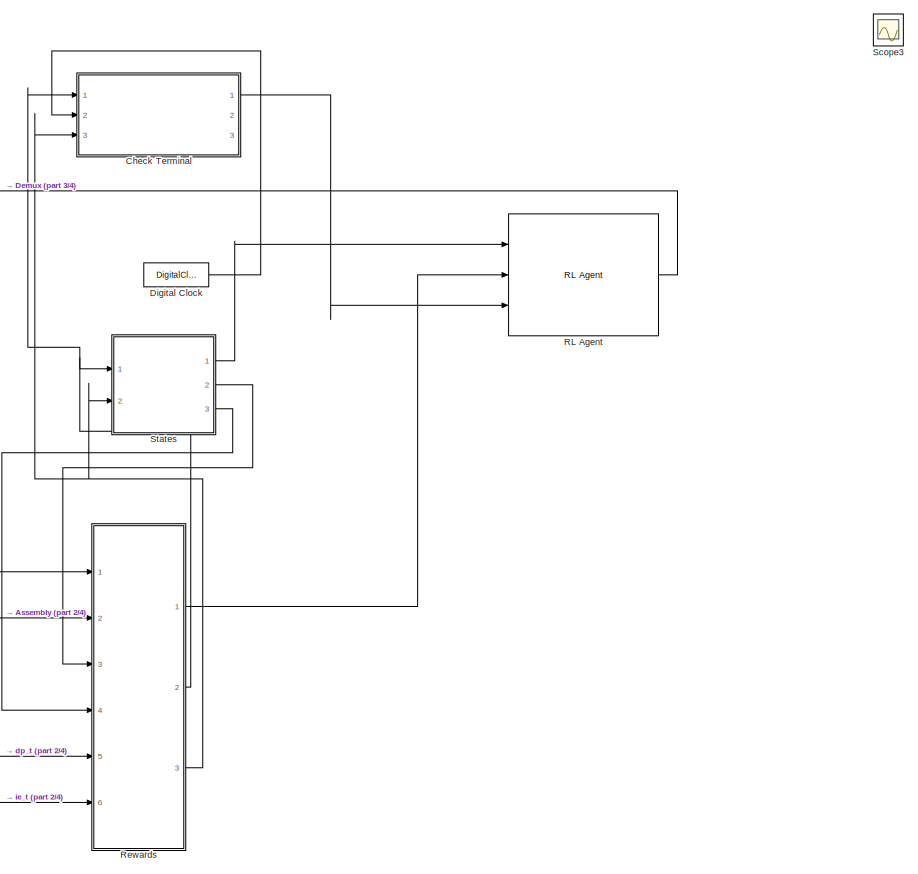
[diagram: root canvas - part 1/4, right side, full height]
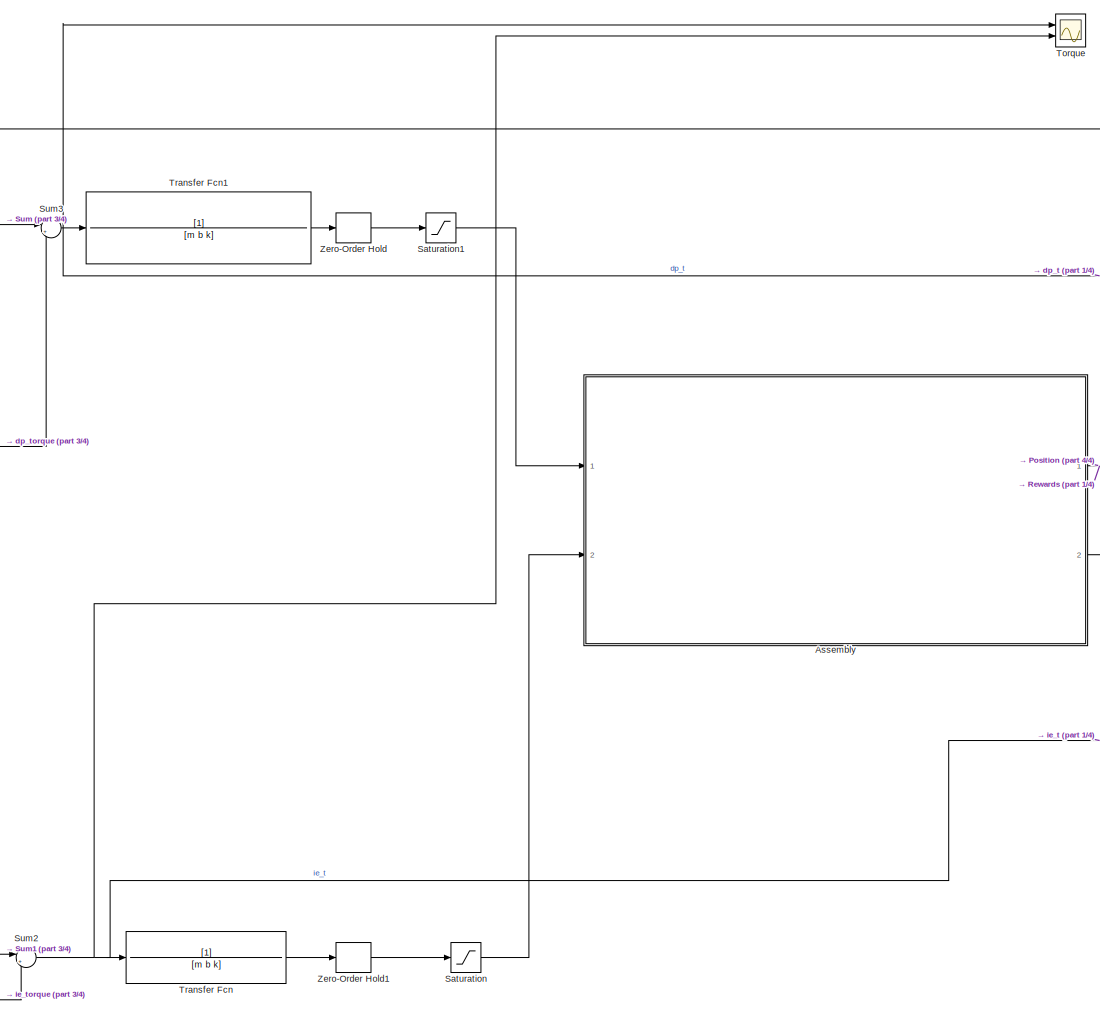
[diagram: root canvas - part 2/4, center side, full height]
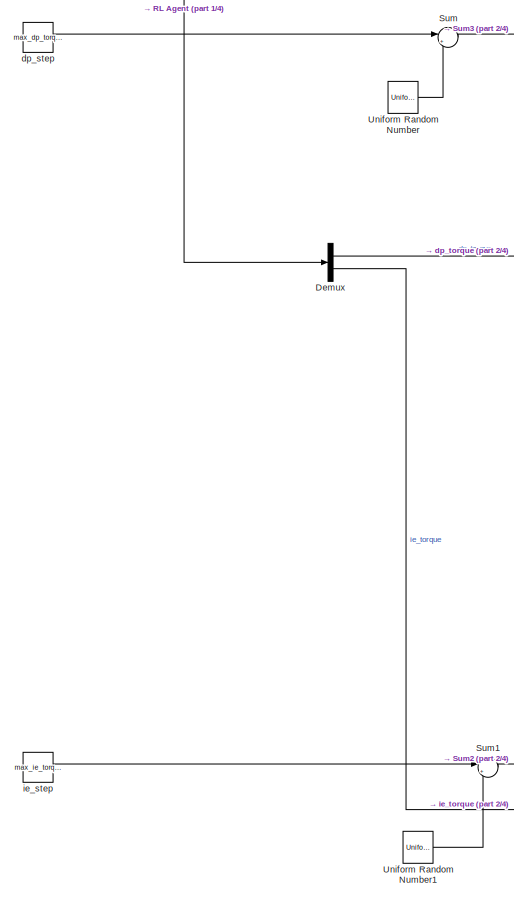
[diagram: root canvas - part 3/4, left side, full height]
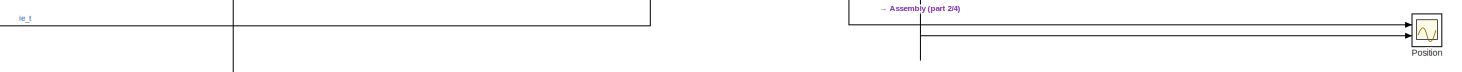
[diagram: root canvas - part 4/4, bottom center region]
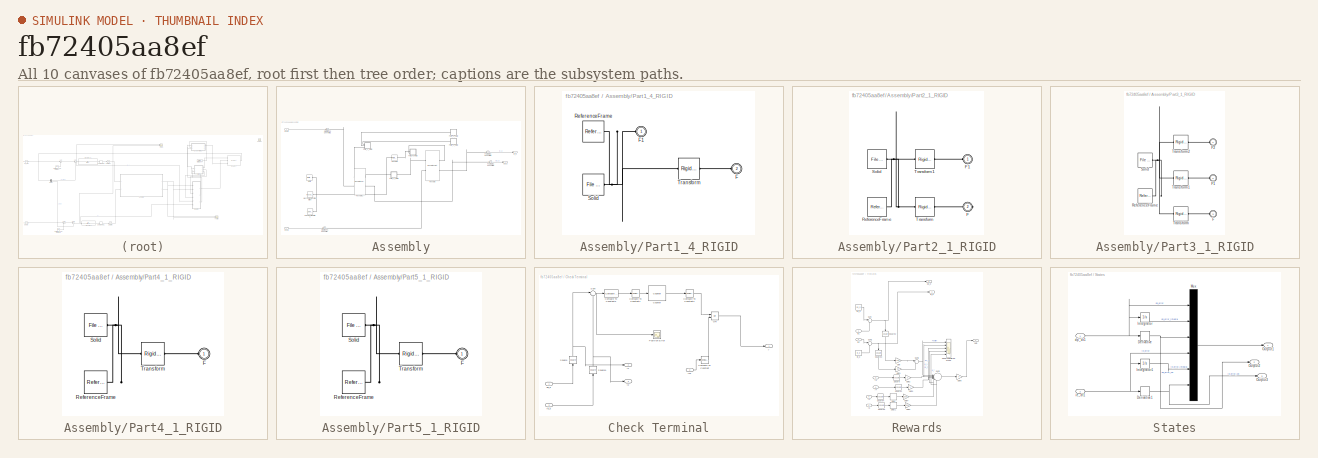
[diagram: thumbnail index - all 10 canvases of the model, root first then tree order]
MODEL slx_fb72405aa8ef
KIND model
CONFIG AbsTol = auto
CONFIG EnableMultiTasking = off
CONFIG FixedStep = T
CONFIG MaxStep = auto
CONFIG MinStep = auto
CONFIG RelTol = 1e-3
CONFIG SampleTimeConstraint = Unconstrained
CONFIG SolverName = FixedStepAuto
CONFIG StartTime = 0.0
CONFIG StopTime = 30
WORKSPACE source: external: MATLAB File  (data not in archive)
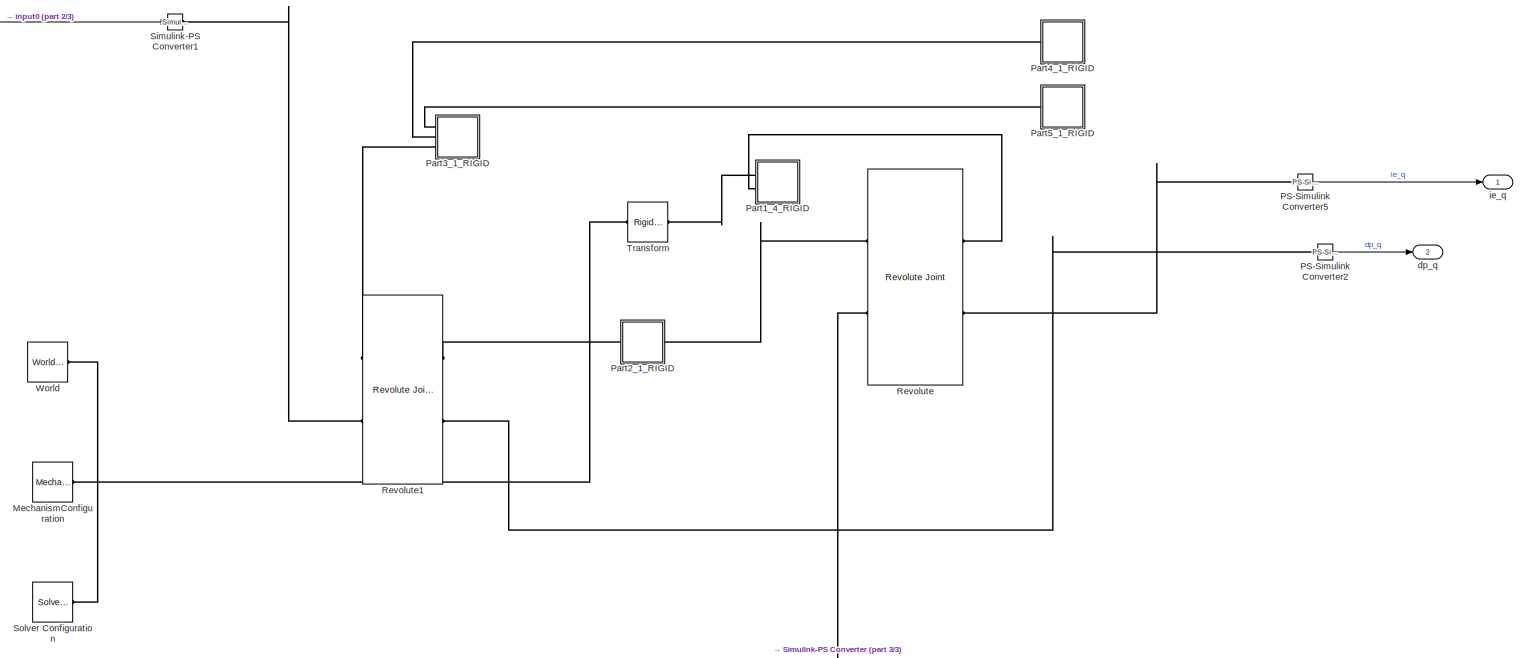
[diagram: Assembly - part 1/3, most of the canvas]
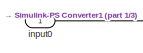
[diagram: Assembly - part 2/3, top left region]
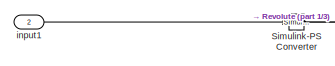
[diagram: Assembly - part 3/3, bottom left region]
BLOCK [SubSystem] Assembly
  Ports = [2, 2]
  RequestExecContextInheritance = off
BLOCK [Reference] Assembly/MechanismConfiguration  REF=sm_lib/Utilities/Mechanism
Configuration
  Ports = [0, 0, 0, 0, 0, 0, 1]
  SourceBlock = sm_lib/Utilities/Mechanism\nConfiguration
  SourceProductBaseCode = MS
  SourceType = Mechanism\nConfiguration
BLOCK [Reference] Assembly/PS-Simulink Converter2  REF=nesl_utility/PS-Simulink
Converter
  Ports = [0, 1, 0, 0, 0, 1]
  SourceBlock = nesl_utility/PS-Simulink\nConverter
  SourceProductBaseCode = PW,SS
  SourceType = PS-Simulink\nConverter
BLOCK [Reference] Assembly/PS-Simulink Converter5  REF=nesl_utility/PS-Simulink
Converter
  Ports = [0, 1, 0, 0, 0, 1]
  SourceBlock = nesl_utility/PS-Simulink\nConverter
  SourceProductBaseCode = PW,SS
  SourceType = PS-Simulink\nConverter
BLOCK [SubSystem] Assembly/Part1_4_RIGID
  Ports = [0, 0, 0, 0, 0, 2]
  RequestExecContextInheritance = off
BLOCK [PMIOPort] Assembly/Part1_4_RIGID/F
  Port = 2
  Side = Left
BLOCK [PMIOPort] Assembly/Part1_4_RIGID/F1
  Side = Left
BLOCK [Reference] Assembly/Part1_4_RIGID/ReferenceFrame  REF=sm_lib/Frames and
Transforms/Reference
Frame
  Ports = [0, 0, 0, 0, 0, 0, 1]
  SourceBlock = sm_lib/Frames and\nTransforms/Reference\nFrame
  SourceProductBaseCode = MS
  SourceType = Reference\nFrame
BLOCK [Reference] Assembly/Part1_4_RIGID/Solid  REF=sm_lib/Body Elements/File Solid
  Ports = [0, 0, 0, 0, 0, 0, 1]
  SourceBlock = sm_lib/Body Elements/File Solid
  SourceProductBaseCode = MS
  SourceType = File Solid
BLOCK [Reference] Assembly/Part1_4_RIGID/Transform  REF=sm_lib/Frames and
Transforms/Rigid
Transform
  Ports = [0, 0, 0, 0, 0, 1, 1]
  SourceBlock = sm_lib/Frames and\nTransforms/Rigid\nTransform
  SourceProductBaseCode = MS
  SourceType = Rigid\nTransform
BLOCK [SubSystem] Assembly/Part2_1_RIGID
  Ports = [0, 0, 0, 0, 0, 1, 1]
  RequestExecContextInheritance = off
BLOCK [PMIOPort] Assembly/Part2_1_RIGID/F
  Port = 2
  Side = Right
BLOCK [PMIOPort] Assembly/Part2_1_RIGID/F1
  Side = Left
BLOCK [Reference] Assembly/Part2_1_RIGID/ReferenceFrame  REF=sm_lib/Frames and
Transforms/Reference
Frame
  Ports = [0, 0, 0, 0, 0, 0, 1]
  SourceBlock = sm_lib/Frames and\nTransforms/Reference\nFrame
  SourceProductBaseCode = MS
  SourceType = Reference\nFrame
BLOCK [Reference] Assembly/Part2_1_RIGID/Solid  REF=sm_lib/Body Elements/File Solid
  Ports = [0, 0, 0, 0, 0, 0, 1]
  SourceBlock = sm_lib/Body Elements/File Solid
  SourceProductBaseCode = MS
  SourceType = File Solid
BLOCK [Reference] Assembly/Part2_1_RIGID/Transform  REF=sm_lib/Frames and
Transforms/Rigid
Transform
  Ports = [0, 0, 0, 0, 0, 1, 1]
  SourceBlock = sm_lib/Frames and\nTransforms/Rigid\nTransform
  SourceProductBaseCode = MS
  SourceType = Rigid\nTransform
BLOCK [Reference] Assembly/Part2_1_RIGID/Transform1  REF=sm_lib/Frames and
Transforms/Rigid
Transform
  Ports = [0, 0, 0, 0, 0, 1, 1]
  SourceBlock = sm_lib/Frames and\nTransforms/Rigid\nTransform
  SourceProductBaseCode = MS
  SourceType = Rigid\nTransform
BLOCK [SubSystem] Assembly/Part3_1_RIGID
  Ports = [0, 0, 0, 0, 0, 3]
  RequestExecContextInheritance = off
BLOCK [PMIOPort] Assembly/Part3_1_RIGID/F
  Port = 3
  Side = Left
BLOCK [PMIOPort] Assembly/Part3_1_RIGID/F1
  Port = 2
  Side = Left
BLOCK [PMIOPort] Assembly/Part3_1_RIGID/F2
  Side = Left
BLOCK [Reference] Assembly/Part3_1_RIGID/ReferenceFrame  REF=sm_lib/Frames and
Transforms/Reference
Frame
  Ports = [0, 0, 0, 0, 0, 0, 1]
  SourceBlock = sm_lib/Frames and\nTransforms/Reference\nFrame
  SourceProductBaseCode = MS
  SourceType = Reference\nFrame
BLOCK [Reference] Assembly/Part3_1_RIGID/Solid  REF=sm_lib/Body Elements/File Solid
  Ports = [0, 0, 0, 0, 0, 0, 1]
  SourceBlock = sm_lib/Body Elements/File Solid
  SourceProductBaseCode = MS
  SourceType = File Solid
BLOCK [Reference] Assembly/Part3_1_RIGID/Transform  REF=sm_lib/Frames and
Transforms/Rigid
Transform
  Ports = [0, 0, 0, 0, 0, 1, 1]
  SourceBlock = sm_lib/Frames and\nTransforms/Rigid\nTransform
  SourceProductBaseCode = MS
  SourceType = Rigid\nTransform
BLOCK [Reference] Assembly/Part3_1_RIGID/Transform1  REF=sm_lib/Frames and
Transforms/Rigid
Transform
  Ports = [0, 0, 0, 0, 0, 1, 1]
  SourceBlock = sm_lib/Frames and\nTransforms/Rigid\nTransform
  SourceProductBaseCode = MS
  SourceType = Rigid\nTransform
BLOCK [Reference] Assembly/Part3_1_RIGID/Transform2  REF=sm_lib/Frames and
Transforms/Rigid
Transform
  Ports = [0, 0, 0, 0, 0, 1, 1]
  SourceBlock = sm_lib/Frames and\nTransforms/Rigid\nTransform
  SourceProductBaseCode = MS
  SourceType = Rigid\nTransform
BLOCK [SubSystem] Assembly/Part4_1_RIGID
  Ports = [0, 0, 0, 0, 0, 1]
  RequestExecContextInheritance = off
BLOCK [PMIOPort] Assembly/Part4_1_RIGID/F
  Side = Left
BLOCK [Reference] Assembly/Part4_1_RIGID/ReferenceFrame  REF=sm_lib/Frames and
Transforms/Reference
Frame
  Ports = [0, 0, 0, 0, 0, 0, 1]
  SourceBlock = sm_lib/Frames and\nTransforms/Reference\nFrame
  SourceProductBaseCode = MS
  SourceType = Reference\nFrame
BLOCK [Reference] Assembly/Part4_1_RIGID/Solid  REF=sm_lib/Body Elements/File Solid
  Ports = [0, 0, 0, 0, 0, 0, 1]
  SourceBlock = sm_lib/Body Elements/File Solid
  SourceProductBaseCode = MS
  SourceType = File Solid
BLOCK [Reference] Assembly/Part4_1_RIGID/Transform  REF=sm_lib/Frames and
Transforms/Rigid
Transform
  Ports = [0, 0, 0, 0, 0, 1, 1]
  SourceBlock = sm_lib/Frames and\nTransforms/Rigid\nTransform
  SourceProductBaseCode = MS
  SourceType = Rigid\nTransform
BLOCK [SubSystem] Assembly/Part5_1_RIGID
  Ports = [0, 0, 0, 0, 0, 1]
  RequestExecContextInheritance = off
BLOCK [PMIOPort] Assembly/Part5_1_RIGID/F
  Side = Left
BLOCK [Reference] Assembly/Part5_1_RIGID/ReferenceFrame  REF=sm_lib/Frames and
Transforms/Reference
Frame
  Ports = [0, 0, 0, 0, 0, 0, 1]
  SourceBlock = sm_lib/Frames and\nTransforms/Reference\nFrame
  SourceProductBaseCode = MS
  SourceType = Reference\nFrame
BLOCK [Reference] Assembly/Part5_1_RIGID/Solid  REF=sm_lib/Body Elements/File Solid
  Ports = [0, 0, 0, 0, 0, 0, 1]
  SourceBlock = sm_lib/Body Elements/File Solid
  SourceProductBaseCode = MS
  SourceType = File Solid
BLOCK [Reference] Assembly/Part5_1_RIGID/Transform  REF=sm_lib/Frames and
Transforms/Rigid
Transform
  Ports = [0, 0, 0, 0, 0, 1, 1]
  SourceBlock = sm_lib/Frames and\nTransforms/Rigid\nTransform
  SourceProductBaseCode = MS
  SourceType = Rigid\nTransform
BLOCK [Reference] Assembly/Revolute  REF=sm_lib/Joints/Revolute Joint
  Ports = [0, 0, 0, 0, 0, 2, 2]
  SourceBlock = sm_lib/Joints/Revolute Joint
  SourceProductBaseCode = MS
  SourceType = Revolute Joint
BLOCK [Reference] Assembly/Revolute1  REF=sm_lib/Joints/Revolute Joint
  Ports = [0, 0, 0, 0, 0, 2, 2]
  SourceBlock = sm_lib/Joints/Revolute Joint
  SourceProductBaseCode = MS
  SourceType = Revolute Joint
BLOCK [Reference] Assembly/Simulink-PS Converter  REF=nesl_utility/Simulink-PS
Converter
  Ports = [1, 0, 0, 0, 0, 0, 1]
  SourceBlock = nesl_utility/Simulink-PS\nConverter
  SourceProductBaseCode = PW,SS
  SourceType = Simulink-PS\nConverter
BLOCK [Reference] Assembly/Simulink-PS Converter1  REF=nesl_utility/Simulink-PS
Converter
  Ports = [1, 0, 0, 0, 0, 0, 1]
  SourceBlock = nesl_utility/Simulink-PS\nConverter
  SourceProductBaseCode = PW,SS
  SourceType = Simulink-PS\nConverter
BLOCK [Reference] Assembly/Solver Configuration  REF=nesl_utility/Solver
Configuration
  Ports = [0, 0, 0, 0, 0, 0, 1]
  SourceBlock = nesl_utility/Solver\nConfiguration
  SourceProductBaseCode = PW,SS
  SourceType = Solver\nConfiguration
BLOCK [Reference] Assembly/Transform  REF=sm_lib/Frames and
Transforms/Rigid
Transform
  Ports = [0, 0, 0, 0, 0, 1, 1]
  SourceBlock = sm_lib/Frames and\nTransforms/Rigid\nTransform
  SourceProductBaseCode = MS
  SourceType = Rigid\nTransform
BLOCK [Reference] Assembly/World  REF=sm_lib/Frames and
Transforms/World Frame
  Ports = [0, 0, 0, 0, 0, 0, 1]
  SourceBlock = sm_lib/Frames and\nTransforms/World Frame
  SourceProductBaseCode = MS
  SourceType = World Frame
BLOCK [Outport] Assembly/dp_q
  Port = 2
BLOCK [Outport] Assembly/ie_q
BLOCK [Inport] Assembly/input0
BLOCK [Inport] Assembly/input1
  Port = 2
BLOCK [SubSystem] Check Terminal
  Ports = [3, 3]
  RequestExecContextInheritance = off
BLOCK [Reference] Check Terminal/Compare To Constant  REF=simulink/Logic and Bit
Operations/Compare
To Constant
  Ports = [1, 1]
  SourceBlock = simulink/Logic and Bit\nOperations/Compare\nTo Constant
  SourceProductBaseCode = SL
  SourceType = Compare To Constant
BLOCK [Reference] Check Terminal/Compare To Constant1  REF=simulink/Logic and Bit
Operations/Compare
To Constant
  Ports = [1, 1]
  SourceBlock = simulink/Logic and Bit\nOperations/Compare\nTo Constant
  SourceProductBaseCode = SL
  SourceType = Compare To Constant
BLOCK [Reference] Check Terminal/Compare To Constant2  REF=simulink/Logic and Bit
Operations/Compare
To Constant
  Ports = [1, 1]
  SourceBlock = simulink/Logic and Bit\nOperations/Compare\nTo Constant
  SourceProductBaseCode = SL
  SourceType = Compare To Constant
BLOCK [Reference] Check Terminal/Compare To Constant3  REF=simulink/Logic and Bit
Operations/Compare
To Constant
  Ports = [1, 1]
  SourceBlock = simulink/Logic and Bit\nOperations/Compare\nTo Constant
  SourceProductBaseCode = SL
  SourceType = Compare To Constant
BLOCK [Reference] Check Terminal/Counter  REF=dspswit3/Counter
  Ports = [1, 1]
  SourceBlock = dspswit3/Counter
  SourceProductBaseCode = DS
  SourceType = Counter
BLOCK [Inport] Check Terminal/In2
  Port = 2
BLOCK [Logic] Check Terminal/OR
  AllPortsSameDT = off
  IconShape = distinctive
  Operator = OR
  OutDataTypeStr = boolean
  Ports = [2, 1]
BLOCK [Scope] Check Terminal/Position Error
  Floating = off
  NumInputPorts = 1
  Ports = [1]
  ScopeSpecificationString = Simulink.scopes.TimeScopeBlockCfg('CurrentConfiguration', extmgr.ConfigurationSet(extmgr.Configuration('Core','General UI',true),extmgr.Configuration('Core','Source UI',true),extmgr.Configuration('Sources','WiredSimulink',true,'DataLoggingVariableName','ScopeData2'),extmgr.Configuration('Visuals','Time Domain',true,'SerializedDisplays',{struct('MinYLimReal','-0.01165','MaxYLimReal','0.10531','YLab...<+1551ch>
BLOCK [Math] Check Terminal/Square
  NameLocation = right
  Operator = square
  Ports = [1, 1]
BLOCK [Math] Check Terminal/Square1
  NameLocation = right
  Operator = square
  Ports = [1, 1]
BLOCK [Sum] Check Terminal/Sum
  Inputs = |++
  Ports = [2, 1]
BLOCK [Inport] Check Terminal/dp_q
BLOCK [Inport] Check Terminal/ie_a
  Port = 3
BLOCK [Outport] Check Terminal/y
BLOCK [Outport] Check Terminal/y1
  Port = 2
BLOCK [Outport] Check Terminal/y2
  Port = 3
BLOCK [Demux] Demux
  Outputs = 2
  Ports = [1, 2]
BLOCK [DigitalClock] Digital Clock
  SampleTime = 1/100
BLOCK [Scope] Position
  Floating = off
  NumInputPorts = 2
  Ports = [2]
  ScopeSpecificationString = Simulink.scopes.TimeScopeBlockCfg('CurrentConfiguration', extmgr.ConfigurationSet(extmgr.Configuration('Core','General UI',true,'FigureColor',[0 0 0]),extmgr.Configuration('Core','Source UI',true),extmgr.Configuration('Sources','WiredSimulink',true,'DataLoggingVariableName','Position','DataLogging',true,'DataLoggingSaveFormat','Structure'),extmgr.Configuration('Visuals','Time Domain',true,'Seriali...<+1995ch>
BLOCK [Reference] RL Agent  REF=rllib/RL Agent
  Ports = [3, 1]
  SourceBlock = rllib/RL Agent
  SourceProductBaseCode = RL
  SourceType = RL Agent
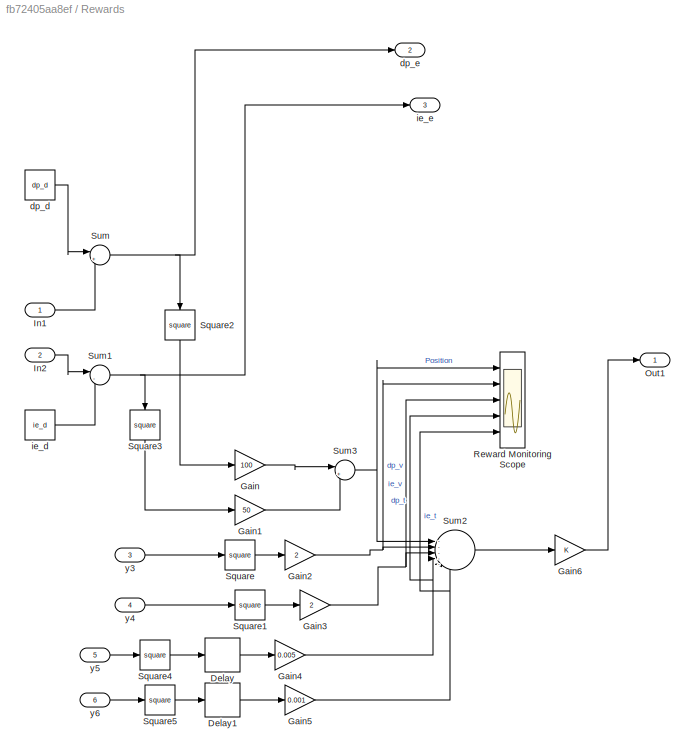
BLOCK [SubSystem] Rewards
  Ports = [6, 3]
  RequestExecContextInheritance = off
BLOCK [Delay] Rewards/Delay
  DelayLength = 1
  InputPortMap = u0
  Ports = [1, 1]
  SampleTime = T
BLOCK [Delay] Rewards/Delay1
  DelayLength = 1
  InputPortMap = u0
  Ports = [1, 1]
  SampleTime = T
BLOCK [Gain] Rewards/Gain
  Gain = 100
BLOCK [Gain] Rewards/Gain1
  Gain = 50
BLOCK [Gain] Rewards/Gain2
  Gain = 2
BLOCK [Gain] Rewards/Gain3
  Gain = 2
BLOCK [Gain] Rewards/Gain4
  Gain = 0.005
BLOCK [Gain] Rewards/Gain5
  Gain = 0.001
BLOCK [Gain] Rewards/Gain6
BLOCK [Inport] Rewards/In1
BLOCK [Inport] Rewards/In2
  Port = 2
BLOCK [Outport] Rewards/Out1
BLOCK [Scope] Rewards/Reward Monitoring Scope
  Floating = off
  NumInputPorts = 5
  Ports = [5]
  ScopeSpecificationString = Simulink.scopes.TimeScopeBlockCfg('CurrentConfiguration', extmgr.ConfigurationSet(extmgr.Configuration('Core','General UI',true),extmgr.Configuration('Core','Source UI',true),extmgr.Configuration('Sources','WiredSimulink',true,'DataLoggingVariableName','ScopeData1'),extmgr.Configuration('Visuals','Time Domain',true,'SerializedDisplays',{struct('MinYLimReal','-1.67187','MaxYLimReal','15.04687','YLa...<+1589ch>
BLOCK [Math] Rewards/Square
  Operator = square
  Ports = [1, 1]
BLOCK [Math] Rewards/Square1
  Operator = square
  Ports = [1, 1]
BLOCK [Math] Rewards/Square2
  NameLocation = left
  Operator = square
  Ports = [1, 1]
BLOCK [Math] Rewards/Square3
  NameLocation = left
  Operator = square
  Ports = [1, 1]
BLOCK [Math] Rewards/Square4
  Operator = square
  Ports = [1, 1]
BLOCK [Math] Rewards/Square5
  Operator = square
  Ports = [1, 1]
BLOCK [Sum] Rewards/Sum
  Inputs = |+-
  Ports = [2, 1]
BLOCK [Sum] Rewards/Sum1
  Inputs = |-+
  Ports = [2, 1]
BLOCK [Sum] Rewards/Sum2
  Inputs = |------
  Ports = [6, 1]
BLOCK [Sum] Rewards/Sum3
  Inputs = |++
  Ports = [2, 1]
BLOCK [Constant] Rewards/dp_d
  Value = dp_d
BLOCK [Outport] Rewards/dp_e
  Port = 2
BLOCK [Constant] Rewards/ie_d
  Value = ie_d
BLOCK [Outport] Rewards/ie_e
  Port = 3
BLOCK [Inport] Rewards/y3
  Port = 3
BLOCK [Inport] Rewards/y4
  Port = 4
BLOCK [Inport] Rewards/y5
  Port = 5
BLOCK [Inport] Rewards/y6
  Port = 6
BLOCK [Saturate] Saturation
  LowerLimit = -0.2
  UpperLimit = 0.2
BLOCK [Saturate] Saturation1
  LowerLimit = -0.4
  UpperLimit = 0.4
BLOCK [Scope] Scope3
  Floating = off
  NumInputPorts = 1
  Ports = [1]
  ScopeSpecificationString = Simulink.scopes.TimeScopeBlockCfg('CurrentConfiguration', extmgr.ConfigurationSet(extmgr.Configuration('Core','General UI',true),extmgr.Configuration('Core','Source UI',true),extmgr.Configuration('Sources','WiredSimulink',true,'DataLoggingVariableName','Torque','DataLogging',true,'DataLoggingSaveFormat','Structure'),extmgr.Configuration('Visuals','Time Domain',true,'SerializedDisplays',{struct('Mi...<+1658ch>
BLOCK [SubSystem] States
  Ports = [2, 3]
  RequestExecContextInheritance = off
BLOCK [Derivative] States/Derivative
BLOCK [Derivative] States/Derivative1
BLOCK [Integrator] States/Integrator
  Ports = [1, 1]
BLOCK [Integrator] States/Integrator1
  Ports = [1, 1]
BLOCK [Mux] States/Mux
  DisplayOption = bar
  Inputs = 6
  Ports = [6, 1]
BLOCK [Outport] States/Output1
BLOCK [Outport] States/Output2
  Port = 2
BLOCK [Outport] States/Output3
  Port = 3
BLOCK [Inport] States/dp_dt1
BLOCK [Inport] States/ie_dt1
  NameLocation = top
  Port = 2
BLOCK [Sum] Sum
  Inputs = |++
  Ports = [2, 1]
BLOCK [Sum] Sum1
  Inputs = |++
  Ports = [2, 1]
BLOCK [Sum] Sum2
  Inputs = |++
  Ports = [2, 1]
BLOCK [Sum] Sum3
  Inputs = |++
  Ports = [2, 1]
BLOCK [Scope] Torque
  Floating = off
  NumInputPorts = 2
  Ports = [2]
  ScopeSpecificationString = Simulink.scopes.TimeScopeBlockCfg('CurrentConfiguration', extmgr.ConfigurationSet(extmgr.Configuration('Core','General UI',true),extmgr.Configuration('Core','Source UI',true),extmgr.Configuration('Sources','WiredSimulink',true,'DataLoggingVariableName','ScopeData2','DataLogging',true,'DataLoggingSaveFormat','Structure'),extmgr.Configuration('Visuals','Time Domain',true,'SerializedDisplays',{struct...<+2063ch>
BLOCK [TransferFcn] Transfer Fcn
  Denominator = [m b k]
BLOCK [TransferFcn] Transfer Fcn1
  Denominator = [m b k]
BLOCK [UniformRandomNumber] Uniform Random Number
  Maximum = 0.0005*abs(max_dp_torque)
  Minimum = -0.0005*abs(max_dp_torque)
  SampleTime = 0
BLOCK [UniformRandomNumber] Uniform Random Number1
  Maximum = 0.0005*abs(max_ie_torque)
  Minimum = -0.0005*abs(max_ie_torque)
  SampleTime = 0
BLOCK [ZeroOrderHold] Zero-Order Hold
  SampleTime = 1/100
BLOCK [ZeroOrderHold] Zero-Order Hold1
  SampleTime = 1/100
BLOCK [Constant] dp_step
  Value = max_dp_torque+randsample([10,-10],1)
BLOCK [Constant] ie_step
  Value = max_ie_torque+randsample([10,-10],1)
LINE Assembly/PS-Simulink Converter2:1 -> Assembly/dp_q:1
LINE Assembly/PS-Simulink Converter5:1 -> Assembly/ie_q:1
LINE Assembly/input0:1 -> Assembly/Simulink-PS Converter1:1
LINE Assembly/input1:1 -> Assembly/Simulink-PS Converter:1
NET Assembly:1 -> Position:2, Rewards:2
NET Assembly:2 -> Position:1, Rewards:1
LINE Check Terminal/Compare To Constant1:1 -> Check Terminal/Counter:1
LINE Check Terminal/Compare To Constant2:1 -> Check Terminal/OR:1
LINE Check Terminal/Compare To Constant3:1 -> Check Terminal/Compare To Constant1:1
LINE Check Terminal/Compare To Constant:1 -> Check Terminal/OR:2
LINE Check Terminal/Counter:1 -> Check Terminal/Compare To Constant2:1
LINE Check Terminal/In2:1 -> Check Terminal/Compare To Constant:1
LINE Check Terminal/OR:1 -> Check Terminal/y:1
NET Check Terminal/Square1:1 -> Check Terminal/Sum:2, Check Terminal/y2:1
NET Check Terminal/Square:1 -> Check Terminal/Sum:1, Check Terminal/y1:1
NET Check Terminal/Sum:1 -> Check Terminal/Compare To Constant3:1, Check Terminal/Position Error:1
LINE Check Terminal/dp_q:1 -> Check Terminal/Square:1
LINE Check Terminal/ie_a:1 -> Check Terminal/Square1:1
LINE Check Terminal:1 -> RL Agent:3
LINE Demux:1 -> Sum3:2
LINE Demux:2 -> Sum2:2
LINE Digital Clock:1 -> Check Terminal:2
LINE RL Agent:1 -> Demux:1
LINE Rewards/Delay1:1 -> Rewards/Gain5:1
LINE Rewards/Delay:1 -> Rewards/Gain4:1
LINE Rewards/Gain1:1 -> Rewards/Sum3:2
NET Rewards/Gain2:1 -> Rewards/Reward Monitoring Scope:2, Rewards/Sum2:3
NET Rewards/Gain3:1 -> Rewards/Reward Monitoring Scope:3, Rewards/Sum2:4
NET Rewards/Gain4:1 -> Rewards/Reward Monitoring Scope:4, Rewards/Sum2:5
NET Rewards/Gain5:1 -> Rewards/Reward Monitoring Scope:5, Rewards/Sum2:6
LINE Rewards/Gain6:1 -> Rewards/Out1:1
LINE Rewards/Gain:1 -> Rewards/Sum3:1
LINE Rewards/In1:1 -> Rewards/Sum:2
LINE Rewards/In2:1 -> Rewards/Sum1:1
LINE Rewards/Square1:1 -> Rewards/Gain3:1
LINE Rewards/Square2:1 -> Rewards/Gain:1
LINE Rewards/Square3:1 -> Rewards/Gain1:1
LINE Rewards/Square4:1 -> Rewards/Delay:1
LINE Rewards/Square5:1 -> Rewards/Delay1:1
LINE Rewards/Square:1 -> Rewards/Gain2:1
NET Rewards/Sum1:1 -> Rewards/Square3:1, Rewards/ie_e:1
LINE Rewards/Sum2:1 -> Rewards/Gain6:1
NET Rewards/Sum3:1 -> Rewards/Reward Monitoring Scope:1, Rewards/Sum2:2
NET Rewards/Sum:1 -> Rewards/Square2:1, Rewards/dp_e:1
LINE Rewards/dp_d:1 -> Rewards/Sum:1
LINE Rewards/ie_d:1 -> Rewards/Sum1:2
LINE Rewards/y3:1 -> Rewards/Square:1
LINE Rewards/y4:1 -> Rewards/Square1:1
LINE Rewards/y5:1 -> Rewards/Square4:1
LINE Rewards/y6:1 -> Rewards/Square5:1
LINE Rewards:1 -> RL Agent:2
NET Rewards:2 -> Check Terminal:1, States:1
NET Rewards:3 -> Check Terminal:3, States:2
LINE Saturation1:1 -> Assembly:1
LINE Saturation:1 -> Assembly:2
NET States/Derivative1:1 -> States/Mux:6, States/Output3:1
NET States/Derivative:1 -> States/Mux:3, States/Output2:1
LINE States/Integrator1:1 -> States/Mux:5
LINE States/Integrator:1 -> States/Mux:2
LINE States/Mux:1 -> States/Output1:1
NET States/dp_dt1:1 -> States/Derivative:1, States/Integrator:1, States/Mux:1
NET States/ie_dt1:1 -> States/Derivative1:1, States/Integrator1:1, States/Mux:4
LINE States:1 -> RL Agent:1
LINE States:2 -> Rewards:3
LINE States:3 -> Rewards:4
LINE Sum1:1 -> Sum2:1
NET Sum2:1 -> Rewards:6, Torque:2, Transfer Fcn:1
NET Sum3:1 -> Rewards:5, Torque:1, Transfer Fcn1:1
LINE Sum:1 -> Sum3:1
LINE Transfer Fcn1:1 -> Zero-Order Hold:1
LINE Transfer Fcn:1 -> Zero-Order Hold1:1
LINE Uniform Random Number1:1 -> Sum1:2
LINE Uniform Random Number:1 -> Sum:2
LINE Zero-Order Hold1:1 -> Saturation:1
LINE Zero-Order Hold:1 -> Saturation1:1
LINE dp_step:1 -> Sum:1
LINE ie_step:1 -> Sum1:1
PNET net1: Assembly/MechanismConfiguration:RConn1 -- Assembly/Solver Configuration:RConn1 -- Assembly/Transform:LConn1 -- Assembly/World:RConn1
PLINE Assembly/PS-Simulink Converter2:LConn1 -- Assembly/Revolute1:RConn2
PLINE Assembly/PS-Simulink Converter5:LConn1 -- Assembly/Revolute:RConn2
PNET net2: Assembly/Part1_4_RIGID/F1:RConn1 -- Assembly/Part1_4_RIGID/ReferenceFrame:RConn1 -- Assembly/Part1_4_RIGID/Solid:RConn1 -- Assembly/Part1_4_RIGID/Transform:LConn1
PLINE Assembly/Part1_4_RIGID/F:RConn1 -- Assembly/Part1_4_RIGID/Transform:RConn1
PLINE Assembly/Part1_4_RIGID:LConn1 -- Assembly/Transform:RConn1
PLINE Assembly/Part1_4_RIGID:LConn2 -- Assembly/Revolute:RConn1
PLINE Assembly/Part2_1_RIGID/F1:RConn1 -- Assembly/Part2_1_RIGID/Transform1:RConn1
PLINE Assembly/Part2_1_RIGID/F:RConn1 -- Assembly/Part2_1_RIGID/Transform:RConn1
PNET net3: Assembly/Part2_1_RIGID/ReferenceFrame:RConn1 -- Assembly/Part2_1_RIGID/Solid:RConn1 -- Assembly/Part2_1_RIGID/Transform1:LConn1 -- Assembly/Part2_1_RIGID/Transform:LConn1
PLINE Assembly/Part2_1_RIGID:LConn1 -- Assembly/Revolute1:RConn1
PLINE Assembly/Part2_1_RIGID:RConn1 -- Assembly/Revolute:LConn1
PLINE Assembly/Part3_1_RIGID/F1:RConn1 -- Assembly/Part3_1_RIGID/Transform1:RConn1
PLINE Assembly/Part3_1_RIGID/F2:RConn1 -- Assembly/Part3_1_RIGID/Transform2:RConn1
PLINE Assembly/Part3_1_RIGID/F:RConn1 -- Assembly/Part3_1_RIGID/Transform:RConn1
PNET net4: Assembly/Part3_1_RIGID/ReferenceFrame:RConn1 -- Assembly/Part3_1_RIGID/Solid:RConn1 -- Assembly/Part3_1_RIGID/Transform1:LConn1 -- Assembly/Part3_1_RIGID/Transform2:LConn1 -- Assembly/Part3_1_RIGID/Transform:LConn1
PLINE Assembly/Part3_1_RIGID:LConn1 -- Assembly/Part5_1_RIGID:LConn1
PLINE Assembly/Part3_1_RIGID:LConn2 -- Assembly/Part4_1_RIGID:LConn1
PLINE Assembly/Part3_1_RIGID:LConn3 -- Assembly/Revolute1:LConn1
PLINE Assembly/Part4_1_RIGID/F:RConn1 -- Assembly/Part4_1_RIGID/Transform:RConn1
PNET net5: Assembly/Part4_1_RIGID/ReferenceFrame:RConn1 -- Assembly/Part4_1_RIGID/Solid:RConn1 -- Assembly/Part4_1_RIGID/Transform:LConn1
PLINE Assembly/Part5_1_RIGID/F:RConn1 -- Assembly/Part5_1_RIGID/Transform:RConn1
PNET net6: Assembly/Part5_1_RIGID/ReferenceFrame:RConn1 -- Assembly/Part5_1_RIGID/Solid:RConn1 -- Assembly/Part5_1_RIGID/Transform:LConn1
PLINE Assembly/Revolute1:LConn2 -- Assembly/Simulink-PS Converter1:RConn1
PLINE Assembly/Revolute:LConn2 -- Assembly/Simulink-PS Converter:RConn1
note: NET lines group one-source signal fan-out (src -> all destinations, sorted); 1:1 wires keep LINE; PNET lines group multi-terminal physical nets as a canonical sorted terminal list (undirected conserving connections); 2-terminal nets keep the pairwise PLINE form
